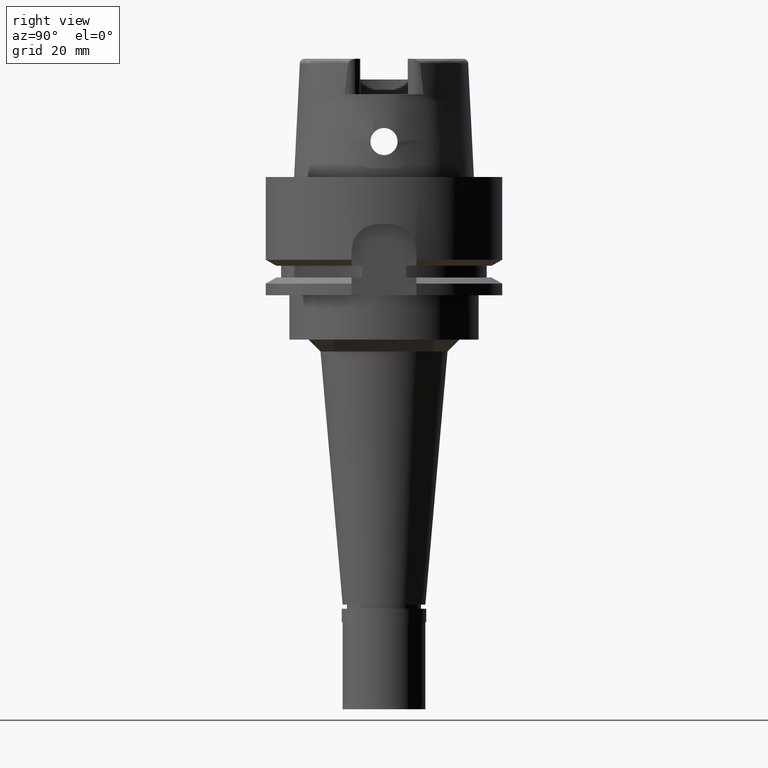
[diagram: clean part render]
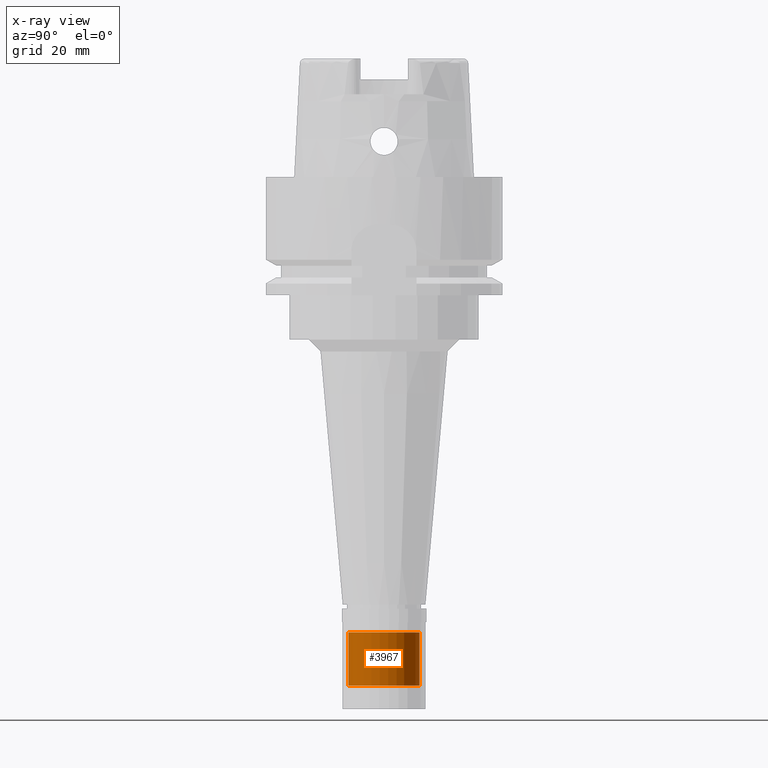
[diagram: x-ray — body ghosted, one internal face saturated and labeled with its STEP entity id]
A machine part, right view, then the same camera in x-ray: the body is ghosted and one INTERNAL B-rep face — a face not visible from any outside direction — is saturated and labeled: STEP entity #3967.
In plain terms, the highlighted cylindrical surface (edge-blend (fillet) strip) has radius 6 mm, axis along (0, 0, -1).
Its self-contained STEP definition (entity closure, byte-faithful):
#99 = VERTEX_POINT ( 'NONE', #2645 ) ;
#491 = DIRECTION ( 'NONE',  ( 0.0000000000000000000, 0.0000000000000000000, -1.000000000000000000 ) ) ;
#720 = EDGE_CURVE ( 'NONE', #1778, #1111, #1787, .T. ) ;
#727 = EDGE_CURVE ( 'NONE', #1778, #966, #2223, .T. ) ;
#746 = AXIS2_PLACEMENT_3D ( 'NONE', #4229, #3712, #853 ) ;
#787 = EDGE_CURVE ( 'NONE', #966, #99, #3826, .T. ) ;
#853 = DIRECTION ( 'NONE',  ( 0.0000000000000000000, -1.000000000000000000, 0.0000000000000000000 ) ) ;
#919 = CIRCLE ( 'NONE', #746, 6.000000000000000000 ) ;
#966 = VERTEX_POINT ( 'NONE', #2708 ) ;
#1111 = VERTEX_POINT ( 'NONE', #4048 ) ;
#1247 = ORIENTED_EDGE ( 'NONE', *, *, #727, .T. ) ;
#1364 = ORIENTED_EDGE ( 'NONE', *, *, #787, .T. ) ;
#1415 = DIRECTION ( 'NONE',  ( 0.0000000000000000000, 0.0000000000000000000, -1.000000000000000000 ) ) ;
#1742 = CARTESIAN_POINT ( 'NONE',  ( 0.0000000000000000000, 1.534482439332000152E-14, 25.30000000000000071 ) ) ;
#1767 = DIRECTION ( 'NONE',  ( 0.0000000000000000000, 0.0000000000000000000, -1.000000000000000000 ) ) ;
#1778 = VERTEX_POINT ( 'NONE', #3456 ) ;
#1787 = LINE ( 'NONE', #2091, #4524 ) ;
#2091 = CARTESIAN_POINT ( 'NONE',  ( 0.0000000000000000000, 6.000000000000000000, -77.00000000000000000 ) ) ;
#2223 = CIRCLE ( 'NONE', #2578, 6.000000000000000000 ) ;
#2427 = ORIENTED_EDGE ( 'NONE', *, *, #720, .F. ) ;
#2436 = EDGE_LOOP ( 'NONE', ( #1247, #1364, #4384, #2427 ) ) ;
#2484 = CYLINDRICAL_SURFACE ( 'NONE', #4278, 6.000000000000000000 ) ;
#2515 = FACE_OUTER_BOUND ( 'NONE', #2436, .T. ) ;
#2578 = AXIS2_PLACEMENT_3D ( 'NONE', #3778, #4533, #3703 ) ;
#2645 = CARTESIAN_POINT ( 'NONE',  ( 0.0000000000000000000, -6.000000000000000000, -86.00000000000000000 ) ) ;
#2708 = CARTESIAN_POINT ( 'NONE',  ( 0.0000000000000000000, -6.000000000000000000, -77.00000000000000000 ) ) ;
#2925 = EDGE_CURVE ( 'NONE', #99, #1111, #919, .T. ) ;
#3456 = CARTESIAN_POINT ( 'NONE',  ( 0.0000000000000000000, 6.000000000000000000, -77.00000000000000000 ) ) ;
#3535 = CARTESIAN_POINT ( 'NONE',  ( 0.0000000000000000000, -6.000000000000000000, -77.00000000000000000 ) ) ;
#3703 = DIRECTION ( 'NONE',  ( 0.0000000000000000000, 1.000000000000000000, 0.0000000000000000000 ) ) ;
#3712 = DIRECTION ( 'NONE',  ( 0.0000000000000000000, 0.0000000000000000000, 1.000000000000000000 ) ) ;
#3778 = CARTESIAN_POINT ( 'NONE',  ( 0.0000000000000000000, 1.534482439332000152E-14, -77.00000000000000000 ) ) ;
#3826 = LINE ( 'NONE', #3535, #4616 ) ;
#3967 = ADVANCED_FACE ( 'NONE', ( #2515 ), #2484, .T. ) ;
#4048 = CARTESIAN_POINT ( 'NONE',  ( 0.0000000000000000000, 6.000000000000000000, -86.00000000000000000 ) ) ;
#4229 = CARTESIAN_POINT ( 'NONE',  ( 0.0000000000000000000, 1.534482439332000152E-14, -86.00000000000000000 ) ) ;
#4278 = AXIS2_PLACEMENT_3D ( 'NONE', #1742, #1767, #4930 ) ;
#4384 = ORIENTED_EDGE ( 'NONE', *, *, #2925, .T. ) ;
#4524 = VECTOR ( 'NONE', #491, 1000.000000000000000 ) ;
#4533 = DIRECTION ( 'NONE',  ( 0.0000000000000000000, 0.0000000000000000000, -1.000000000000000000 ) ) ;
#4616 = VECTOR ( 'NONE', #1415, 1000.000000000000000 ) ;
#4930 = DIRECTION ( 'NONE',  ( 0.0000000000000000000, -1.000000000000000000, 0.0000000000000000000 ) ) ;